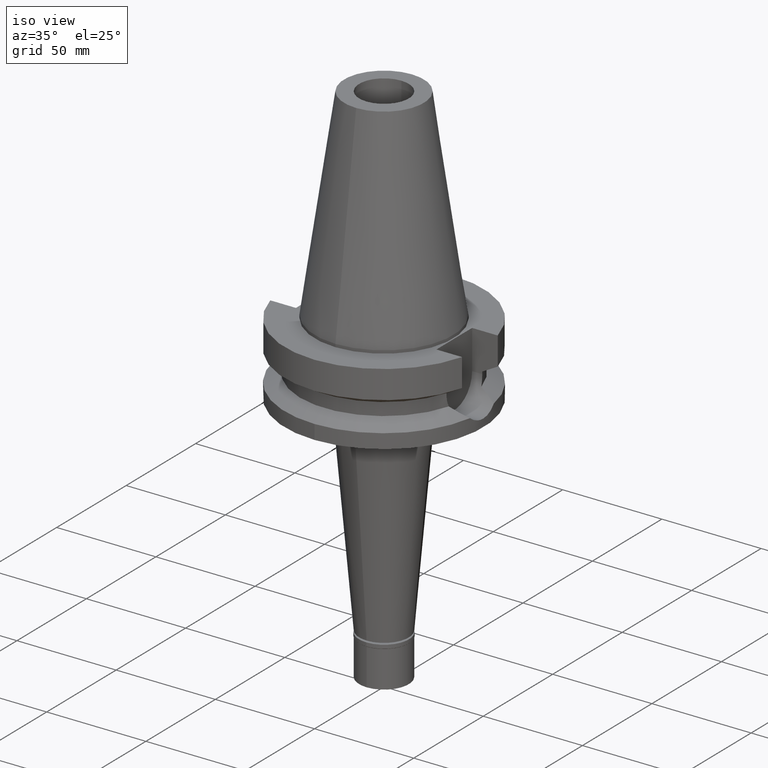
[diagram: clean part render]
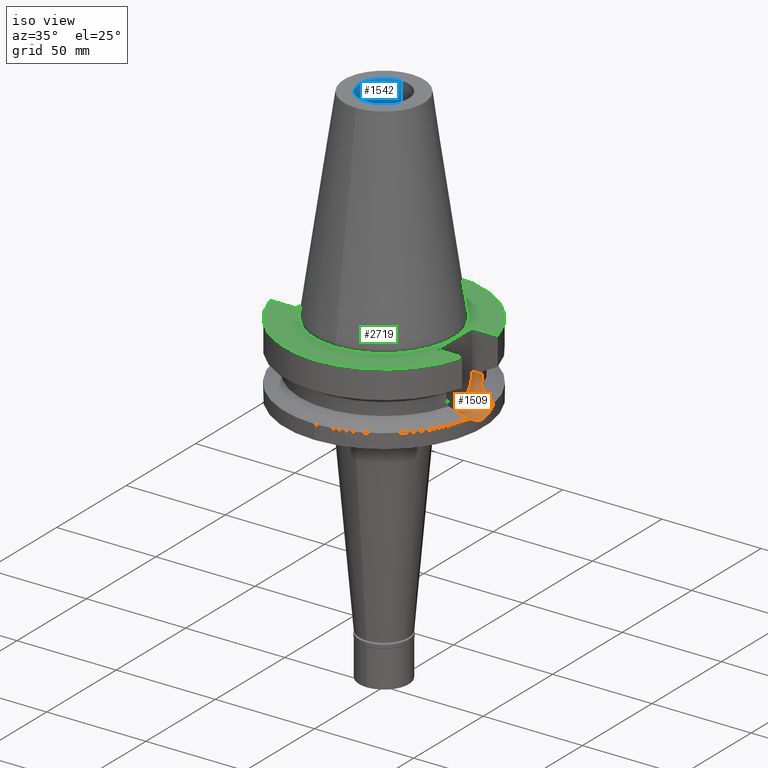
[diagram: same view with three faces highlighted in distinct colors, each labeled with its STEP entity id]
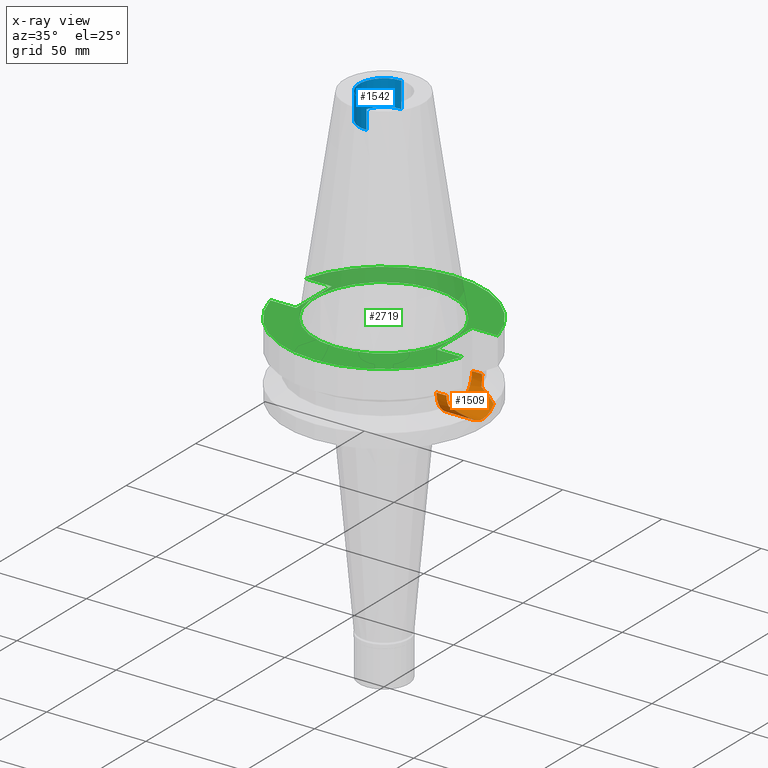
[diagram: x-ray of the same camera — body ghosted, the three highlighted faces saturated]
A machine part, iso view with three faces highlighted in distinct colors.
The next image is the same camera in x-ray (body ghosted, the three faces saturated) — at least one of them is partly hidden behind the body in this view.
Their STEP definitions:

[orange] entity #1509 — the highlighted cylindrical surface (edge-blend (fillet) strip) has radius 12.85 mm, axis along (1, 0, 0).
#11 = CARTESIAN_POINT ( 'NONE',  ( 45.52078920595857170, 10.31187234045769685, -28.81733138308011277 ) ) ;
#12 = CIRCLE ( 'NONE', #261, 12.84999999999999964 ) ;
#15 = FACE_OUTER_BOUND ( 'NONE', #2581, .T. ) ;
#21 = CARTESIAN_POINT ( 'NONE',  ( 40.85052569294000335, 11.72538061688000077, -26.40718074535000426 ) ) ;
#38 = DIRECTION ( 'NONE',  ( -1.000000000000000000, -3.510427359434999885E-14, 0.0000000000000000000 ) ) ;
#39 = VERTEX_POINT ( 'NONE', #1518 ) ;
#49 = CARTESIAN_POINT ( 'NONE',  ( 40.73816962964880872, -12.11682243018209704, -25.53412644635514539 ) ) ;
#63 = CARTESIAN_POINT ( 'NONE',  ( 40.56599794183718188, -12.67508828619821415, -23.26599945041198580 ) ) ;
#105 = CARTESIAN_POINT ( 'NONE',  ( 49.79170874925387125, 4.559128567782474661, -33.16402800634871539 ) ) ;
#138 = CARTESIAN_POINT ( 'NONE',  ( 49.84837068522750059, 3.895670753398043029, -33.39815263645422050 ) ) ;
#142 = CARTESIAN_POINT ( 'NONE',  ( 42.55063764150068550, -11.29931477995020295, -27.28703553467459386 ) ) ;
#173 = ORIENTED_EDGE ( 'NONE', *, *, #1853, .T. ) ;
#176 = CARTESIAN_POINT ( 'NONE',  ( 45.45354993623342210, -10.33750072963140809, -28.78274268588822338 ) ) ;
#227 = CARTESIAN_POINT ( 'NONE',  ( 40.60257244295487311, 12.55730800210168496, -23.87713024258036754 ) ) ;
#233 = CARTESIAN_POINT ( 'NONE',  ( 35.39999999999999858, 0.0000000000000000000, -21.14999999999999858 ) ) ;
#253 = AXIS2_PLACEMENT_3D ( 'NONE', #233, #2440, #461 ) ;
#261 = AXIS2_PLACEMENT_3D ( 'NONE', #1230, #746, #1992 ) ;
#290 = CARTESIAN_POINT ( 'NONE',  ( 49.26250064874000145, 8.556052234130000045, -30.73730776426999967 ) ) ;
#333 = CARTESIAN_POINT ( 'NONE',  ( 49.26250064874000145, 8.556052234130000045, -30.73730776426999967 ) ) ;
#346 = CARTESIAN_POINT ( 'NONE',  ( 49.71771244287386793, -5.301720186609951035, -32.85659238541509808 ) ) ;
#360 = CARTESIAN_POINT ( 'NONE',  ( 50.00000025974999573, 1.774696908984000155E-14, -34.00000114470000057 ) ) ;
#405 = CARTESIAN_POINT ( 'NONE',  ( 45.19844535542470965, -10.43334968133742713, -28.65152541275976361 ) ) ;
#432 = EDGE_CURVE ( 'NONE', #2443, #2919, #690, .T. ) ;
#458 = EDGE_CURVE ( 'NONE', #39, #2919, #12, .T. ) ;
#461 = DIRECTION ( 'NONE',  ( 0.0000000000000000000, 0.0000000000000000000, -1.000000000000000000 ) ) ;
#466 = VERTEX_POINT ( 'NONE', #290 ) ;
#521 = CARTESIAN_POINT ( 'NONE',  ( 40.65436025735130698, -12.39001373507904624, -24.66363152923814894 ) ) ;
#522 = CARTESIAN_POINT ( 'NONE',  ( 45.58836535497151488, 10.28594060728756432, -28.85208592352179124 ) ) ;
#543 = EDGE_CURVE ( 'NONE', #466, #2894, #2507, .T. ) ;
#586 = CARTESIAN_POINT ( 'NONE',  ( 40.51083188481999997, -12.84999999999999964, -21.14999999999999858 ) ) ;
#592 = CARTESIAN_POINT ( 'NONE',  ( 49.75680721493095149, -4.924372200038003022, -33.01927248172847840 ) ) ;
#609 = CARTESIAN_POINT ( 'NONE',  ( 49.79052572488830464, -4.572062755272113144, -33.15911172846682575 ) ) ;
#612 = CARTESIAN_POINT ( 'NONE',  ( 49.38719044871420749, 7.838135701598223370, -31.37800184681349691 ) ) ;
#632 = CARTESIAN_POINT ( 'NONE',  ( 49.98260905406998944, 1.500665618673954427, -33.93573820486336245 ) ) ;
#633 = B_SPLINE_CURVE_WITH_KNOTS ( 'NONE', 3,
 ( #586, #1080, #842, #1296, #1821, #63, #3015, #2279, #2742, #1584, #824, #521, #49, #2004 ),
 .UNSPECIFIED., .F., .F.,
 ( 4, 2, 2, 1, 1, 2, 2, 4 ),
 ( 0.0000000000000000000, 0.2500000000000069944, 0.3750000000000094924, 0.4375000000000108802, 0.4687500000000116018, 0.4843750000000118794, 0.5000000000000121014, 1.000000000000000000 ),
 .UNSPECIFIED. ) ;
#649 = ORIENTED_EDGE ( 'NONE', *, *, #2170, .T. ) ;
#652 = CARTESIAN_POINT ( 'NONE',  ( 41.72587041949945075, -11.52210067780068847, -26.86056722242659589 ) ) ;
#672 = B_SPLINE_CURVE_WITH_KNOTS ( 'NONE', 3,
 ( #1660, #652, #142, #1427, #1114, #2839, #888, #405, #2101, #2136, #176, #1839, #2577, #873, #1900 ),
 .UNSPECIFIED., .F., .F.,
 ( 4, 2, 2, 1, 1, 1, 2, 2, 4 ),
 ( 0.0000000000000000000, 0.2500000000000145994, 0.3750000000000228151, 0.4375000000000268674, 0.4687500000000282552, 0.4843750000000289213, 0.4921875000000284217, 0.5000000000000278666, 1.000000000000000000 ),
 .UNSPECIFIED. ) ;
#687 = CARTESIAN_POINT ( 'NONE',  ( 40.61157027093148031, 12.52820949425047026, -24.00859467745382148 ) ) ;
#690 = LINE ( 'NONE', #2678, #1662 ) ;
#741 = CARTESIAN_POINT ( 'NONE',  ( 40.85052569294000335, 11.72538061688000077, -26.40718074535000426 ) ) ;
#746 = DIRECTION ( 'NONE',  ( -1.000000000000000000, 0.0000000000000000000, 0.0000000000000000000 ) ) ;
#757 = CARTESIAN_POINT ( 'NONE',  ( 40.51083188481999287, 12.84999999999999964, -22.03309742073675537 ) ) ;
#777 = CARTESIAN_POINT ( 'NONE',  ( 47.19280588964101497, 9.616093936077110271, -29.67648206991205484 ) ) ;
#795 = CARTESIAN_POINT ( 'NONE',  ( 40.85052569294000335, 11.72538061688000077, -26.40718074535000426 ) ) ;
#815 = EDGE_CURVE ( 'NONE', #1408, #466, #2132, .T. ) ;
#818 = CARTESIAN_POINT ( 'NONE',  ( 49.62581554097071290, -6.100699782661163084, -32.46623685348927069 ) ) ;
#824 = CARTESIAN_POINT ( 'NONE',  ( 40.59737061725673613, -12.57411364518322827, -23.79856269427695281 ) ) ;
#842 = CARTESIAN_POINT ( 'NONE',  ( 40.51818735908895519, -12.82722126770211091, -22.03688626290332309 ) ) ;
#860 = CARTESIAN_POINT ( 'NONE',  ( 49.86088866506666051, -3.802344464100822385, -33.45151161015256491 ) ) ;
#873 = CARTESIAN_POINT ( 'NONE',  ( 48.17415619495920254, -9.180616057047490841, -30.17992493857814296 ) ) ;
#888 = CARTESIAN_POINT ( 'NONE',  ( 44.89569479869023638, -10.54434206935367158, -28.49577376785703464 ) ) ;
#901 = CARTESIAN_POINT ( 'NONE',  ( 49.80628532616984216, 4.396934166536055066, -33.22451764730967483 ) ) ;
#957 = CARTESIAN_POINT ( 'NONE',  ( 40.51083188481999997, -12.84999999999999964, -21.14999999999999858 ) ) ;
#959 = EDGE_CURVE ( 'NONE', #39, #2536, #2600, .T. ) ;
#990 = CARTESIAN_POINT ( 'NONE',  ( 49.26250064874000145, 8.556052234130000045, -30.73730776426999967 ) ) ;
#1017 = CARTESIAN_POINT ( 'NONE',  ( 40.79434733663426726, 11.92110265460875951, -25.97065107314824317 ) ) ;
#1037 = CARTESIAN_POINT ( 'NONE',  ( 42.60291874452227034, 11.31842511470924784, -27.31483608158969645 ) ) ;
#1040 = CYLINDRICAL_SURFACE ( 'NONE', #253, 12.85000000000000320 ) ;
#1080 = CARTESIAN_POINT ( 'NONE',  ( 40.51083188482000708, -12.85000000000000142, -21.59155125953240173 ) ) ;
#1087 = CARTESIAN_POINT ( 'NONE',  ( 49.79078946305824616, -4.569185635567651893, -33.16020745300446038 ) ) ;
#1114 = CARTESIAN_POINT ( 'NONE',  ( 44.08637270024717481, -10.82404127757931178, -28.07911835383035282 ) ) ;
#1185 = B_SPLINE_CURVE_WITH_KNOTS ( 'NONE', 3,
 ( #21, #1017, #2897, #3150, #2959, #1933, #1496, #687, #1727, #227, #1693, #2419, #757, #1676 ),
 .UNSPECIFIED., .F., .F.,
 ( 4, 2, 2, 1, 1, 2, 2, 4 ),
 ( 0.0000000000000000000, 0.2499999999999920619, 0.3749999999999889533, 0.4374999999999874545, 0.4687499999999865663, 0.4843749999999859557, 0.4999999999999853451, 1.000000000000000000 ),
 .UNSPECIFIED. ) ;
#1230 = CARTESIAN_POINT ( 'NONE',  ( 35.39999999999999858, 0.0000000000000000000, -21.14999999999999858 ) ) ;
#1296 = CARTESIAN_POINT ( 'NONE',  ( 40.54025378189582796, -12.75731467218757409, -22.70686882179159127 ) ) ;
#1298 = VERTEX_POINT ( 'NONE', #2751 ) ;
#1351 = CARTESIAN_POINT ( 'NONE',  ( 49.66531577328977676, -5.772453008276097641, -32.63570655766154260 ) ) ;
#1367 = EDGE_CURVE ( 'NONE', #1298, #1408, #2436, .T. ) ;
#1391 = CARTESIAN_POINT ( 'NONE',  ( 49.90869642992999644, 3.032807478734742546, -33.64331436785318630 ) ) ;
#1408 = VERTEX_POINT ( 'NONE', #3069 ) ;
#1427 = CARTESIAN_POINT ( 'NONE',  ( 43.71192221766519737, -10.94534104730260360, -27.88615723323004758 ) ) ;
#1496 = CARTESIAN_POINT ( 'NONE',  ( 40.62483067706675399, 12.48524489601930476, -24.19332376313167998 ) ) ;
#1507 = ORIENTED_EDGE ( 'NONE', *, *, #432, .F. ) ;
#1509 = ADVANCED_FACE ( 'NONE', ( #15 ), #1040, .F. ) ;
#1513 = CARTESIAN_POINT ( 'NONE',  ( 48.71887294882621688, 8.868021660094203895, -30.45889522452185361 ) ) ;
#1518 = CARTESIAN_POINT ( 'NONE',  ( 35.39999999999999858, 12.84999999999999964, -21.14999999999999858 ) ) ;
#1540 = CARTESIAN_POINT ( 'NONE',  ( 45.54411434443760243, 10.30294260112819416, -28.82932780312296828 ) ) ;
#1561 = CARTESIAN_POINT ( 'NONE',  ( 49.77979861140840256, -4.687619708070342561, -33.11458520032999076 ) ) ;
#1566 = CARTESIAN_POINT ( 'NONE',  ( 49.79509525718311380, 4.521911686844853229, -33.17809616899797476 ) ) ;
#1581 = CARTESIAN_POINT ( 'NONE',  ( 49.73972721061419833, 5.127761864402944347, -32.94800215655704534 ) ) ;
#1584 = CARTESIAN_POINT ( 'NONE',  ( 40.59544857123436401, -12.58031941217379668, -23.76894563305584995 ) ) ;
#1591 = VERTEX_POINT ( 'NONE', #1701 ) ;
#1603 = CARTESIAN_POINT ( 'NONE',  ( 49.98261131041458327, -1.500624885913280915, -33.93573978233207100 ) ) ;
#1616 = VECTOR ( 'NONE', #2078, 1000.000000000000000 ) ;
#1625 = CARTESIAN_POINT ( 'NONE',  ( 49.93043543702997766, 2.648726358617874865, -33.73005955322771143 ) ) ;
#1660 = CARTESIAN_POINT ( 'NONE',  ( 40.85052569294000335, -11.72538061688000077, -26.40718074535000426 ) ) ;
#1662 = VECTOR ( 'NONE', #38, 1000.000000000000000 ) ;
#1676 = CARTESIAN_POINT ( 'NONE',  ( 40.51083188481999997, 12.84999999999999964, -21.14999999999999858 ) ) ;
#1693 = CARTESIAN_POINT ( 'NONE',  ( 40.60092910951219380, 12.56261850439502226, -23.85257851101207649 ) ) ;
#1701 = CARTESIAN_POINT ( 'NONE',  ( 40.85052569294000335, -11.72538061688000077, -26.40718074535000426 ) ) ;
#1727 = CARTESIAN_POINT ( 'NONE',  ( 40.60613812303787995, 12.54578004800032431, -23.92968102609641079 ) ) ;
#1743 = CARTESIAN_POINT ( 'NONE',  ( 46.36714818152310613, 9.974233124765673253, -29.25244395454468105 ) ) ;
#1752 = CARTESIAN_POINT ( 'NONE',  ( 35.39999999999999858, 12.84999999999999964, -21.14999999999999858 ) ) ;
#1756 = CARTESIAN_POINT ( 'NONE',  ( 48.13349579656224364, 9.173324215048953789, -30.15906538712861717 ) ) ;
#1792 = CARTESIAN_POINT ( 'NONE',  ( 49.38719230600825227, -7.838125008021568974, -31.37801139013916796 ) ) ;
#1821 = CARTESIAN_POINT ( 'NONE',  ( 40.54944812473202376, -12.72805978472144339, -22.93052269426958034 ) ) ;
#1839 = CARTESIAN_POINT ( 'NONE',  ( 45.47343149790571459, -10.32994363454118592, -28.79296847917923685 ) ) ;
#1853 = EDGE_CURVE ( 'NONE', #2894, #2536, #1185, .T. ) ;
#1865 = CARTESIAN_POINT ( 'NONE',  ( 50.00000025974999573, 1.774696908984000155E-14, -34.00000114470000057 ) ) ;
#1900 = CARTESIAN_POINT ( 'NONE',  ( 49.26250064874000145, -8.556052234130000045, -30.73730776426999967 ) ) ;
#1933 = CARTESIAN_POINT ( 'NONE',  ( 40.63720027269733492, 12.44499102500596699, -24.35263434037272035 ) ) ;
#1992 = DIRECTION ( 'NONE',  ( 0.0000000000000000000, 1.000000000000000000, 0.0000000000000000000 ) ) ;
#2002 = CARTESIAN_POINT ( 'NONE',  ( 49.66987082488880390, 5.762061219917149479, -32.66234491607447410 ) ) ;
#2004 = CARTESIAN_POINT ( 'NONE',  ( 40.85052569294000335, -11.72538061688000077, -26.40718074535000426 ) ) ;
#2042 = CARTESIAN_POINT ( 'NONE',  ( 49.91305551307291211, -3.031270826377053140, -33.66153124149426645 ) ) ;
#2056 = CARTESIAN_POINT ( 'NONE',  ( 49.26250064874000145, -8.556052234130000045, -30.73730776426999967 ) ) ;
#2078 = DIRECTION ( 'NONE',  ( 1.000000000000000000, -3.336643826789999529E-14, 0.0000000000000000000 ) ) ;
#2101 = CARTESIAN_POINT ( 'NONE',  ( 45.34774616583153062, -10.37751441483502113, -28.72832273643857803 ) ) ;
#2130 = CARTESIAN_POINT ( 'NONE',  ( 49.82078931996940696, 4.230072290410884506, -33.28453423724438665 ) ) ;
#2132 = B_SPLINE_CURVE_WITH_KNOTS ( 'NONE', 3,
 ( #1865, #3099, #632, #1625, #1391, #2368, #138, #2130, #901, #2974, #1566, #2739, #2336, #105, #1581, #2002, #2830, #612, #333 ),
 .UNSPECIFIED., .F., .F.,
 ( 4, 2, 2, 1, 1, 1, 1, 1, 2, 2, 2, 4 ),
 ( 0.0000000000000000000, 0.2500000000000003331, 0.3750000000000004441, 0.4375000000000008327, 0.4687500000000007216, 0.4843750000000011657, 0.4921875000000016653, 0.4960937500000018874, 0.4980468750000023315, 0.5000000000000027756, 0.7500000000000014433, 1.000000000000000000 ),
 .UNSPECIFIED. ) ;
#2136 = CARTESIAN_POINT ( 'NONE',  ( 45.41128769858580938, -10.35351530345624305, -28.76100539384957955 ) ) ;
#2169 = ORIENTED_EDGE ( 'NONE', *, *, #1367, .T. ) ;
#2170 = EDGE_CURVE ( 'NONE', #1591, #1298, #672, .T. ) ;
#2216 = ORIENTED_EDGE ( 'NONE', *, *, #543, .T. ) ;
#2222 = CARTESIAN_POINT ( 'NONE',  ( 45.80835650820470306, 10.20051568857517665, -28.96521527933893125 ) ) ;
#2263 = CARTESIAN_POINT ( 'NONE',  ( 44.15265718722727684, 10.83393534528898172, -28.11366311299500254 ) ) ;
#2279 = CARTESIAN_POINT ( 'NONE',  ( 40.58662774857589994, -12.60877356363314306, -23.62931612666511327 ) ) ;
#2300 = CARTESIAN_POINT ( 'NONE',  ( 49.76776460767242583, -4.813848196824465298, -33.06469792030519272 ) ) ;
#2302 = ORIENTED_EDGE ( 'NONE', *, *, #2595, .T. ) ;
#2331 = CARTESIAN_POINT ( 'NONE',  ( 49.78562820799414368, -4.625197376536470451, -33.13877319685349221 ) ) ;
#2336 = CARTESIAN_POINT ( 'NONE',  ( 49.79239168047006103, 4.551645640508602320, -33.16686574697995127 ) ) ;
#2368 = CARTESIAN_POINT ( 'NONE',  ( 49.86956621714999471, 3.608177968257165524, -33.48463145066168778 ) ) ;
#2419 = CARTESIAN_POINT ( 'NONE',  ( 40.54025138676031759, 12.75862549541255042, -22.93152005434224705 ) ) ;
#2428 = ORIENTED_EDGE ( 'NONE', *, *, #959, .F. ) ;
#2430 = CARTESIAN_POINT ( 'NONE',  ( 35.39999999999999858, -12.84999999999999964, -21.14999999999999858 ) ) ;
#2436 = B_SPLINE_CURVE_WITH_KNOTS ( 'NONE', 3,
 ( #2056, #1792, #2564, #818, #1351, #346, #2812, #592, #2300, #1561, #2331, #3055, #2840, #609, #1087, #860, #2042, #1603, #3025, #360 ),
 .UNSPECIFIED., .F., .F.,
 ( 4, 2, 2, 2, 1, 1, 1, 1, 2, 2, 2, 4 ),
 ( 0.0000000000000000000, 0.2500000000000019429, 0.3750000000000028866, 0.4375000000000027200, 0.4687500000000024980, 0.4843750000000030531, 0.4921875000000038303, 0.4960937500000040523, 0.4980468750000043854, 0.5000000000000046629, 0.7500000000000023315, 1.000000000000000000 ),
 .UNSPECIFIED. ) ;
#2440 = DIRECTION ( 'NONE',  ( 1.000000000000000000, 0.0000000000000000000, 0.0000000000000000000 ) ) ;
#2443 = VERTEX_POINT ( 'NONE', #957 ) ;
#2454 = CARTESIAN_POINT ( 'NONE',  ( 46.86880522424636553, 9.761147956415024751, -29.51015480884274567 ) ) ;
#2507 = B_SPLINE_CURVE_WITH_KNOTS ( 'NONE', 3,
 ( #990, #1513, #1756, #777, #2454, #1743, #2743, #2222, #2990, #522, #1540, #11, #2263, #1037, #795 ),
 .UNSPECIFIED., .F., .F.,
 ( 4, 2, 2, 1, 1, 1, 2, 2, 4 ),
 ( 0.0000000000000000000, 0.2499999999999907851, 0.3749999999999851230, 0.4374999999999822919, 0.4687499999999817368, 0.4843749999999825140, 0.4921874999999828471, 0.4999999999999832356, 1.000000000000000000 ),
 .UNSPECIFIED. ) ;
#2511 = CARTESIAN_POINT ( 'NONE',  ( 40.51083188481999997, 12.84999999999999964, -21.14999999999999858 ) ) ;
#2536 = VERTEX_POINT ( 'NONE', #2511 ) ;
#2564 = CARTESIAN_POINT ( 'NONE',  ( 49.49360748622444817, -7.117022365926930938, -31.87769826629265779 ) ) ;
#2577 = CARTESIAN_POINT ( 'NONE',  ( 46.91854397791189513, -9.778739355240650966, -29.53623149637081013 ) ) ;
#2581 = EDGE_LOOP ( 'NONE', ( #2216, #173, #2428, #2886, #1507, #2302, #649, #2169, #2651 ) ) ;
#2595 = EDGE_CURVE ( 'NONE', #2443, #1591, #633, .T. ) ;
#2600 = LINE ( 'NONE', #1752, #1616 ) ;
#2651 = ORIENTED_EDGE ( 'NONE', *, *, #815, .T. ) ;
#2678 = CARTESIAN_POINT ( 'NONE',  ( 40.51083188481999997, -12.84999999999999964, -21.14999999999999858 ) ) ;
#2739 = CARTESIAN_POINT ( 'NONE',  ( 49.79347438492521150, 4.539752812139286497, -33.17136368397422785 ) ) ;
#2742 = CARTESIAN_POINT ( 'NONE',  ( 40.59188576338534915, -12.59181613885845330, -23.71309950380452847 ) ) ;
#2743 = CARTESIAN_POINT ( 'NONE',  ( 46.11240564900362671, 10.07965130720243785, -29.12153429659522175 ) ) ;
#2751 = CARTESIAN_POINT ( 'NONE',  ( 49.26250064874000145, -8.556052234130000045, -30.73730776426999967 ) ) ;
#2812 = CARTESIAN_POINT ( 'NONE',  ( 49.73403571958615998, -5.148397096495456182, -32.92466732340630386 ) ) ;
#2830 = CARTESIAN_POINT ( 'NONE',  ( 49.49360244393878361, 7.117060693371261237, -31.87766899450242164 ) ) ;
#2839 = CARTESIAN_POINT ( 'NONE',  ( 44.62908185991078369, -10.63822092125096042, -28.35855521694123382 ) ) ;
#2840 = CARTESIAN_POINT ( 'NONE',  ( 49.78971523552871048, -4.580896940923099514, -33.15574469000517865 ) ) ;
#2886 = ORIENTED_EDGE ( 'NONE', *, *, #458, .T. ) ;
#2894 = VERTEX_POINT ( 'NONE', #741 ) ;
#2897 = CARTESIAN_POINT ( 'NONE',  ( 40.74530521662314442, 12.08734525800560355, -25.53455946903086726 ) ) ;
#2919 = VERTEX_POINT ( 'NONE', #2430 ) ;
#2959 = CARTESIAN_POINT ( 'NONE',  ( 40.66327750826377496, 12.35976744503744662, -24.67240287687921452 ) ) ;
#2974 = CARTESIAN_POINT ( 'NONE',  ( 49.79885500147747024, 4.480269389574216277, -33.19370440294226654 ) ) ;
#2990 = CARTESIAN_POINT ( 'NONE',  ( 45.65461955792370929, 10.26039721921293335, -28.88615912994739432 ) ) ;
#3015 = CARTESIAN_POINT ( 'NONE',  ( 40.57496242610246640, -12.64633064307897037, -23.43373649620420807 ) ) ;
#3025 = CARTESIAN_POINT ( 'NONE',  ( 50.00000025974999573, -0.7410656247012755715, -33.99999999999999289 ) ) ;
#3055 = CARTESIAN_POINT ( 'NONE',  ( 49.78849615496642400, -4.594160770999257792, -33.15068097424745019 ) ) ;
#3069 = CARTESIAN_POINT ( 'NONE',  ( 50.00000025974999573, 1.774696908984000155E-14, -34.00000114470000057 ) ) ;
#3099 = CARTESIAN_POINT ( 'NONE',  ( 50.00000025974999573, 0.7410749815433747001, -33.99999999999999289 ) ) ;
#3150 = CARTESIAN_POINT ( 'NONE',  ( 40.68244639104836580, 12.29666286615228721, -24.88711474765173648 ) ) ;

[blue] entity #1542 — the highlighted cylindrical surface (edge-blend (fillet) strip) has radius 12.5 mm, axis along (0, 0, -1).
#88 = EDGE_LOOP ( 'NONE', ( #331, #2614, #2376, #2213 ) ) ;
#100 = CARTESIAN_POINT ( 'NONE',  ( 0.0000000000000000000, -12.50000000000000000, 88.79999999999999716 ) ) ;
#264 = AXIS2_PLACEMENT_3D ( 'NONE', #1592, #349, #3107 ) ;
#280 = DIRECTION ( 'NONE',  ( 0.0000000000000000000, 1.000000000000000000, 0.0000000000000000000 ) ) ;
#327 = CARTESIAN_POINT ( 'NONE',  ( 0.0000000000000000000, 2.630908718607999774E-14, 101.7999999999999972 ) ) ;
#331 = ORIENTED_EDGE ( 'NONE', *, *, #2012, .T. ) ;
#349 = DIRECTION ( 'NONE',  ( 0.0000000000000000000, 0.0000000000000000000, -1.000000000000000000 ) ) ;
#508 = FACE_OUTER_BOUND ( 'NONE', #88, .T. ) ;
#518 = CARTESIAN_POINT ( 'NONE',  ( 0.0000000000000000000, -12.50000000000000000, 101.7999999999999972 ) ) ;
#526 = LINE ( 'NONE', #1747, #2937 ) ;
#719 = VERTEX_POINT ( 'NONE', #1786 ) ;
#738 = AXIS2_PLACEMENT_3D ( 'NONE', #327, #846, #280 ) ;
#787 = CIRCLE ( 'NONE', #738, 12.50000000000000000 ) ;
#846 = DIRECTION ( 'NONE',  ( 0.0000000000000000000, 0.0000000000000000000, 1.000000000000000000 ) ) ;
#858 = VERTEX_POINT ( 'NONE', #518 ) ;
#991 = AXIS2_PLACEMENT_3D ( 'NONE', #1217, #2489, #2965 ) ;
#995 = EDGE_CURVE ( 'NONE', #1382, #719, #2895, .T. ) ;
#1096 = CARTESIAN_POINT ( 'NONE',  ( 0.0000000000000000000, 12.50000000000000000, 101.7999999999999972 ) ) ;
#1217 = CARTESIAN_POINT ( 'NONE',  ( 0.0000000000000000000, 2.630908718607999774E-14, 114.8299999999999983 ) ) ;
#1382 = VERTEX_POINT ( 'NONE', #100 ) ;
#1530 = DIRECTION ( 'NONE',  ( 0.0000000000000000000, 0.0000000000000000000, 1.000000000000000000 ) ) ;
#1542 = ADVANCED_FACE ( 'NONE', ( #508 ), #2225, .F. ) ;
#1592 = CARTESIAN_POINT ( 'NONE',  ( 0.0000000000000000000, 2.630908718607999774E-14, 88.79999999999999716 ) ) ;
#1610 = CARTESIAN_POINT ( 'NONE',  ( 0.0000000000000000000, 12.50000000000000000, 88.79999999999999716 ) ) ;
#1698 = EDGE_CURVE ( 'NONE', #1382, #858, #526, .T. ) ;
#1747 = CARTESIAN_POINT ( 'NONE',  ( 0.0000000000000000000, -12.50000000000000000, 88.79999999999999716 ) ) ;
#1786 = CARTESIAN_POINT ( 'NONE',  ( 0.0000000000000000000, 12.50000000000000000, 88.79999999999999716 ) ) ;
#2012 = EDGE_CURVE ( 'NONE', #2683, #858, #787, .T. ) ;
#2213 = ORIENTED_EDGE ( 'NONE', *, *, #2637, .T. ) ;
#2225 = CYLINDRICAL_SURFACE ( 'NONE', #991, 12.50000000000000000 ) ;
#2376 = ORIENTED_EDGE ( 'NONE', *, *, #995, .T. ) ;
#2489 = DIRECTION ( 'NONE',  ( 0.0000000000000000000, 0.0000000000000000000, -1.000000000000000000 ) ) ;
#2603 = DIRECTION ( 'NONE',  ( 0.0000000000000000000, 0.0000000000000000000, 1.000000000000000000 ) ) ;
#2614 = ORIENTED_EDGE ( 'NONE', *, *, #1698, .F. ) ;
#2637 = EDGE_CURVE ( 'NONE', #719, #2683, #3080, .T. ) ;
#2683 = VERTEX_POINT ( 'NONE', #1096 ) ;
#2744 = VECTOR ( 'NONE', #2603, 1000.000000000000000 ) ;
#2895 = CIRCLE ( 'NONE', #264, 12.50000000000000000 ) ;
#2937 = VECTOR ( 'NONE', #1530, 1000.000000000000000 ) ;
#2965 = DIRECTION ( 'NONE',  ( 0.0000000000000000000, -1.000000000000000000, 0.0000000000000000000 ) ) ;
#3080 = LINE ( 'NONE', #1610, #2744 ) ;
#3107 = DIRECTION ( 'NONE',  ( 0.0000000000000000000, -1.000000000000000000, 0.0000000000000000000 ) ) ;

[green] entity #2719 — the highlighted planar face has unit normal (0, 0, -1).
#18 = LINE ( 'NONE', #1221, #2032 ) ;
#26 = ORIENTED_EDGE ( 'NONE', *, *, #1476, .F. ) ;
#89 = CARTESIAN_POINT ( 'NONE',  ( 35.39999999999999858, -12.84999999999999964, -1.500000000000000000 ) ) ;
#104 = AXIS2_PLACEMENT_3D ( 'NONE', #1201, #696, #896 ) ;
#165 = CARTESIAN_POINT ( 'NONE',  ( 0.0000000000000000000, -34.92499999999999716, -1.500000000000000000 ) ) ;
#182 = VERTEX_POINT ( 'NONE', #576 ) ;
#195 = DIRECTION ( 'NONE',  ( -1.000000000000000000, 0.0000000000000000000, 0.0000000000000000000 ) ) ;
#259 = CARTESIAN_POINT ( 'NONE',  ( 0.0000000000000000000, 2.630908718607999774E-14, -1.500000000000000000 ) ) ;
#300 = EDGE_CURVE ( 'NONE', #2792, #717, #1213, .T. ) ;
#314 = AXIS2_PLACEMENT_3D ( 'NONE', #2093, #3029, #2568 ) ;
#363 = ORIENTED_EDGE ( 'NONE', *, *, #1271, .F. ) ;
#364 = ORIENTED_EDGE ( 'NONE', *, *, #1103, .F. ) ;
#457 = VECTOR ( 'NONE', #2255, 1000.000000000000000 ) ;
#472 = CIRCLE ( 'NONE', #104, 34.92499999999999716 ) ;
#560 = EDGE_CURVE ( 'NONE', #2792, #2655, #1773, .T. ) ;
#576 = CARTESIAN_POINT ( 'NONE',  ( -48.32057015392000210, 12.84999999999999964, -1.500000000000000000 ) ) ;
#676 = DIRECTION ( 'NONE',  ( -1.000000000000000000, 0.0000000000000000000, 0.0000000000000000000 ) ) ;
#685 = VECTOR ( 'NONE', #195, 1000.000000000000000 ) ;
#686 = EDGE_LOOP ( 'NONE', ( #3167, #26 ) ) ;
#696 = DIRECTION ( 'NONE',  ( 0.0000000000000000000, 0.0000000000000000000, 1.000000000000000000 ) ) ;
#714 = LINE ( 'NONE', #1012, #457 ) ;
#717 = VERTEX_POINT ( 'NONE', #869 ) ;
#749 = ORIENTED_EDGE ( 'NONE', *, *, #1769, .F. ) ;
#776 = CARTESIAN_POINT ( 'NONE',  ( 35.39999999999999858, 12.84999999999999964, -1.500000000000000000 ) ) ;
#796 = CIRCLE ( 'NONE', #314, 50.00000000000000000 ) ;
#827 = VERTEX_POINT ( 'NONE', #1372 ) ;
#835 = VERTEX_POINT ( 'NONE', #1075 ) ;
#868 = DIRECTION ( 'NONE',  ( 0.0000000000000000000, -1.000000000000000000, 0.0000000000000000000 ) ) ;
#869 = CARTESIAN_POINT ( 'NONE',  ( -48.32057015392000210, -12.84999999999999964, -1.500000000000000000 ) ) ;
#891 = EDGE_CURVE ( 'NONE', #1844, #717, #796, .T. ) ;
#896 = DIRECTION ( 'NONE',  ( 0.0000000000000000000, 1.000000000000000000, 0.0000000000000000000 ) ) ;
#902 = EDGE_CURVE ( 'NONE', #835, #1844, #2305, .T. ) ;
#908 = DIRECTION ( 'NONE',  ( 0.0000000000000000000, 0.0000000000000000000, 1.000000000000000000 ) ) ;
#914 = PLANE ( 'NONE',  #1815 ) ;
#934 = CIRCLE ( 'NONE', #1401, 34.92499999999999716 ) ;
#955 = CARTESIAN_POINT ( 'NONE',  ( 48.32057015392000210, -12.84999999999999964, -1.500000000000000000 ) ) ;
#978 = DIRECTION ( 'NONE',  ( 0.0000000000000000000, -1.000000000000000000, 0.0000000000000000000 ) ) ;
#987 = DIRECTION ( 'NONE',  ( 0.0000000000000000000, 1.000000000000000000, 0.0000000000000000000 ) ) ;
#1012 = CARTESIAN_POINT ( 'NONE',  ( 35.39999999999999858, 12.84999999999999964, -1.500000000000000000 ) ) ;
#1067 = VERTEX_POINT ( 'NONE', #165 ) ;
#1075 = CARTESIAN_POINT ( 'NONE',  ( 35.39999999999999858, -12.84999999999999964, -1.500000000000000000 ) ) ;
#1103 = EDGE_CURVE ( 'NONE', #2655, #182, #1907, .T. ) ;
#1125 = FACE_BOUND ( 'NONE', #686, .T. ) ;
#1126 = EDGE_CURVE ( 'NONE', #1383, #1067, #472, .T. ) ;
#1144 = ORIENTED_EDGE ( 'NONE', *, *, #891, .F. ) ;
#1201 = CARTESIAN_POINT ( 'NONE',  ( 0.0000000000000000000, 2.630908718607999774E-14, -1.500000000000000000 ) ) ;
#1213 = LINE ( 'NONE', #2659, #685 ) ;
#1221 = CARTESIAN_POINT ( 'NONE',  ( 35.39999999999999858, 12.84999999999999964, -1.500000000000000000 ) ) ;
#1239 = ORIENTED_EDGE ( 'NONE', *, *, #902, .F. ) ;
#1271 = EDGE_CURVE ( 'NONE', #2605, #835, #18, .T. ) ;
#1297 = CARTESIAN_POINT ( 'NONE',  ( -35.39999999999999858, -12.84999999999999964, -1.500000000000000000 ) ) ;
#1321 = ORIENTED_EDGE ( 'NONE', *, *, #560, .F. ) ;
#1333 = EDGE_LOOP ( 'NONE', ( #3083, #1144, #1239, #363, #2730, #749, #364, #1321 ) ) ;
#1372 = CARTESIAN_POINT ( 'NONE',  ( 48.32057015392000210, 12.84999999999999964, -1.500000000000000000 ) ) ;
#1383 = VERTEX_POINT ( 'NONE', #2579 ) ;
#1401 = AXIS2_PLACEMENT_3D ( 'NONE', #3105, #908, #978 ) ;
#1476 = EDGE_CURVE ( 'NONE', #1067, #1383, #934, .T. ) ;
#1499 = DIRECTION ( 'NONE',  ( 0.0000000000000000000, 1.000000000000000000, 0.0000000000000000000 ) ) ;
#1539 = EDGE_CURVE ( 'NONE', #2605, #827, #714, .T. ) ;
#1557 = AXIS2_PLACEMENT_3D ( 'NONE', #259, #2711, #987 ) ;
#1769 = EDGE_CURVE ( 'NONE', #182, #827, #3082, .T. ) ;
#1773 = LINE ( 'NONE', #1297, #2996 ) ;
#1815 = AXIS2_PLACEMENT_3D ( 'NONE', #2557, #2339, #868 ) ;
#1823 = VECTOR ( 'NONE', #2802, 1000.000000000000000 ) ;
#1844 = VERTEX_POINT ( 'NONE', #955 ) ;
#1907 = LINE ( 'NONE', #1925, #2954 ) ;
#1925 = CARTESIAN_POINT ( 'NONE',  ( -35.39999999999999858, 12.84999999999999964, -1.500000000000000000 ) ) ;
#2032 = VECTOR ( 'NONE', #2984, 1000.000000000000000 ) ;
#2093 = CARTESIAN_POINT ( 'NONE',  ( 0.0000000000000000000, 2.630908718607999774E-14, -1.500000000000000000 ) ) ;
#2129 = FACE_OUTER_BOUND ( 'NONE', #1333, .T. ) ;
#2255 = DIRECTION ( 'NONE',  ( 1.000000000000000000, 0.0000000000000000000, 0.0000000000000000000 ) ) ;
#2305 = LINE ( 'NONE', #89, #1823 ) ;
#2339 = DIRECTION ( 'NONE',  ( 0.0000000000000000000, 0.0000000000000000000, -1.000000000000000000 ) ) ;
#2383 = CARTESIAN_POINT ( 'NONE',  ( -35.39999999999999858, 12.84999999999999964, -1.500000000000000000 ) ) ;
#2557 = CARTESIAN_POINT ( 'NONE',  ( 0.0000000000000000000, 1.206277097159999845E-14, -1.500000000000000000 ) ) ;
#2568 = DIRECTION ( 'NONE',  ( 0.0000000000000000000, -1.000000000000000000, 0.0000000000000000000 ) ) ;
#2579 = CARTESIAN_POINT ( 'NONE',  ( 0.0000000000000000000, 34.92499999999999716, -1.500000000000000000 ) ) ;
#2605 = VERTEX_POINT ( 'NONE', #776 ) ;
#2655 = VERTEX_POINT ( 'NONE', #2383 ) ;
#2659 = CARTESIAN_POINT ( 'NONE',  ( -35.39999999999999858, -12.84999999999999964, -1.500000000000000000 ) ) ;
#2711 = DIRECTION ( 'NONE',  ( 0.0000000000000000000, 0.0000000000000000000, -1.000000000000000000 ) ) ;
#2719 = ADVANCED_FACE ( 'NONE', ( #2129, #1125 ), #914, .F. ) ;
#2730 = ORIENTED_EDGE ( 'NONE', *, *, #1539, .T. ) ;
#2792 = VERTEX_POINT ( 'NONE', #3129 ) ;
#2802 = DIRECTION ( 'NONE',  ( 1.000000000000000000, 0.0000000000000000000, 0.0000000000000000000 ) ) ;
#2954 = VECTOR ( 'NONE', #676, 1000.000000000000000 ) ;
#2984 = DIRECTION ( 'NONE',  ( 0.0000000000000000000, -1.000000000000000000, 0.0000000000000000000 ) ) ;
#2996 = VECTOR ( 'NONE', #1499, 1000.000000000000000 ) ;
#3029 = DIRECTION ( 'NONE',  ( 0.0000000000000000000, 0.0000000000000000000, -1.000000000000000000 ) ) ;
#3082 = CIRCLE ( 'NONE', #1557, 50.00000000000000000 ) ;
#3083 = ORIENTED_EDGE ( 'NONE', *, *, #300, .T. ) ;
#3105 = CARTESIAN_POINT ( 'NONE',  ( 0.0000000000000000000, 2.630908718607999774E-14, -1.500000000000000000 ) ) ;
#3129 = CARTESIAN_POINT ( 'NONE',  ( -35.39999999999999858, -12.84999999999999964, -1.500000000000000000 ) ) ;
#3167 = ORIENTED_EDGE ( 'NONE', *, *, #1126, .F. ) ;